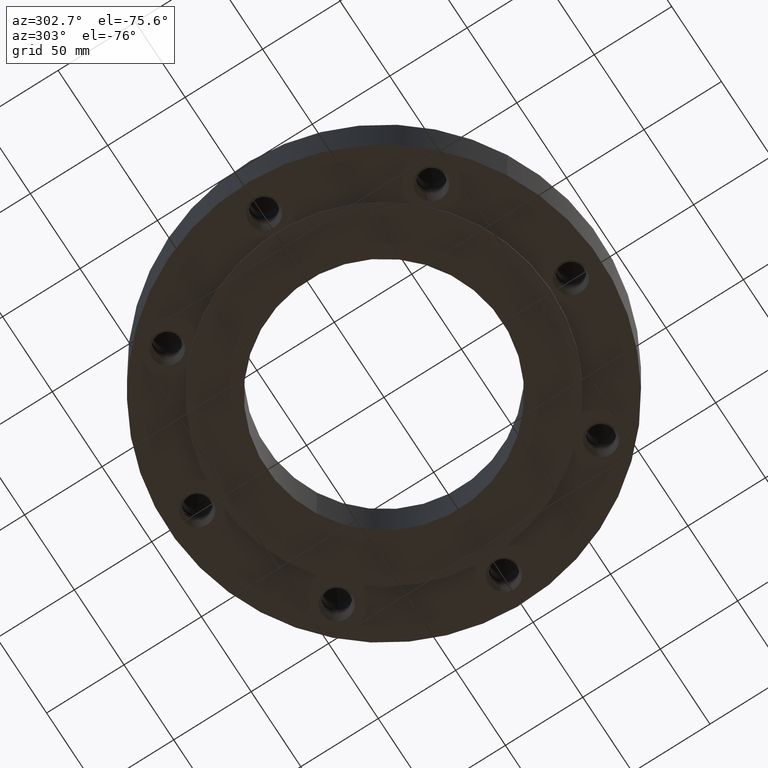
[diagram: clean part render]
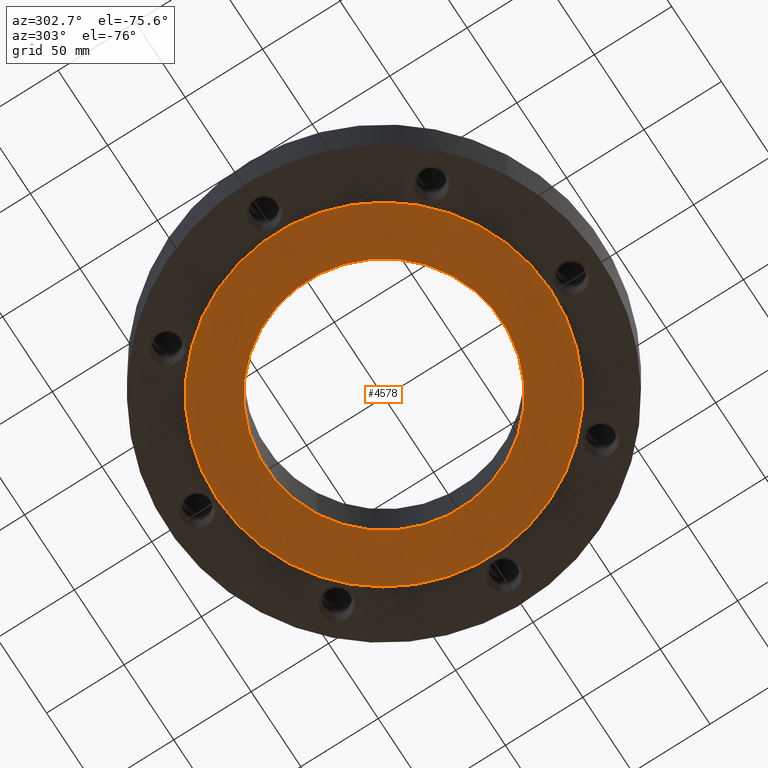
[diagram: same view with one face highlighted and labeled with its STEP entity id]
A machine part, auxiliary view. The second image highlights one B-rep face of the part: STEP entity #4578.
In plain terms, the highlighted planar face has unit normal (0, 0, -1).
Its self-contained STEP definition (entity closure, byte-faithful):
#3503=AXIS2_PLACEMENT_3D('Circle Axis2P3D',#3501,#3502,$) ;
#3529=AXIS2_PLACEMENT_3D('Circle Axis2P3D',#3527,#3528,$) ;
#4554=AXIS2_PLACEMENT_3D('Plane Axis2P3D',#4551,#4552,#4553) ;
#4562=AXIS2_PLACEMENT_3D('Circle Axis2P3D',#4560,#4561,$) ;
#4571=AXIS2_PLACEMENT_3D('Circle Axis2P3D',#4569,#4570,$) ;
#3501=CARTESIAN_POINT('Axis2P3D Location',(0.,0.,-0.0625000000003)) ;
#3505=CARTESIAN_POINT('Vertex',(2.03755853908,3.72972588805,-0.0625000000003)) ;
#3507=CARTESIAN_POINT('Vertex',(-2.03755853908,-3.72972588805,-0.0625000000003)) ;
#3527=CARTESIAN_POINT('Axis2P3D Location',(0.,0.,-0.0625000000003)) ;
#4551=CARTESIAN_POINT('Axis2P3D Location',(0.,4.25000000002,-0.0625000000003)) ;
#4560=CARTESIAN_POINT('Axis2P3D Location',(0.,0.,-0.0625000000003)) ;
#4564=CARTESIAN_POINT('Vertex',(1.43827661582,2.63274768568,-0.0625000000002)) ;
#4566=CARTESIAN_POINT('Vertex',(-1.43827661582,-2.63274768568,-0.0625000000002)) ;
#4569=CARTESIAN_POINT('Axis2P3D Location',(0.,0.,-0.0625000000003)) ;
#3502=DIRECTION('Axis2P3D Direction',(0.,0.,-0.0393700787402)) ;
#3528=DIRECTION('Axis2P3D Direction',(0.,0.,-0.0393700787402)) ;
#4552=DIRECTION('Axis2P3D Direction',(0.,0.,-0.0393700787402)) ;
#4553=DIRECTION('Axis2P3D XDirection',(0.0393700787402,0.,0.)) ;
#4561=DIRECTION('Axis2P3D Direction',(0.,0.,-0.0393700787402)) ;
#4570=DIRECTION('Axis2P3D Direction',(0.,0.,-0.0393700787402)) ;
#4557=ORIENTED_EDGE('',*,*,#3531,.T.) ;
#4558=ORIENTED_EDGE('',*,*,#3509,.T.) ;
#4575=ORIENTED_EDGE('',*,*,#4568,.F.) ;
#4576=ORIENTED_EDGE('',*,*,#4573,.F.) ;
#4577=FACE_BOUND('',#4574,.T.) ;
#4578=ADVANCED_FACE('PartBody',(#4559,#4577),#4555,.T.) ;
#3504=CIRCLE('generated circle',#3503,4.25000000002) ;
#3530=CIRCLE('generated circle',#3529,4.25000000002) ;
#4563=CIRCLE('generated circle',#4562,3.00000000001) ;
#4572=CIRCLE('generated circle',#4571,3.00000000001) ;
#3509=EDGE_CURVE('',#3506,#3508,#3504,.T.) ;
#3531=EDGE_CURVE('',#3508,#3506,#3530,.T.) ;
#4568=EDGE_CURVE('',#4565,#4567,#4563,.T.) ;
#4573=EDGE_CURVE('',#4567,#4565,#4572,.T.) ;
#4556=EDGE_LOOP('',(#4557,#4558)) ;
#4574=EDGE_LOOP('',(#4575,#4576)) ;
#4559=FACE_OUTER_BOUND('',#4556,.T.) ;
#4555=PLANE('',#4554) ;
#3506=VERTEX_POINT('',#3505) ;
#3508=VERTEX_POINT('',#3507) ;
#4565=VERTEX_POINT('',#4564) ;
#4567=VERTEX_POINT('',#4566) ;